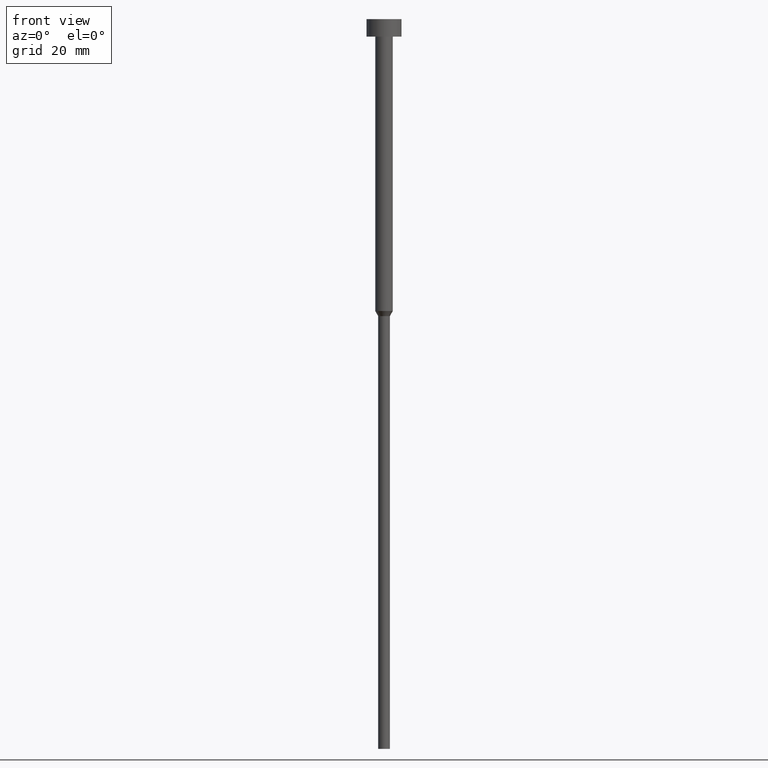
[diagram: clean part render]
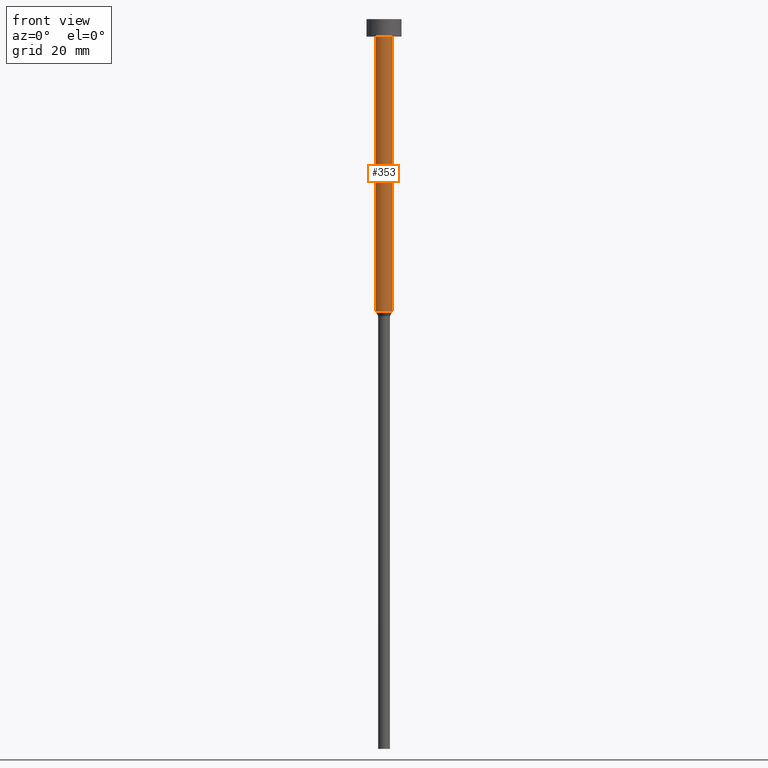
[diagram: same view with one face highlighted and labeled with its STEP entity id]
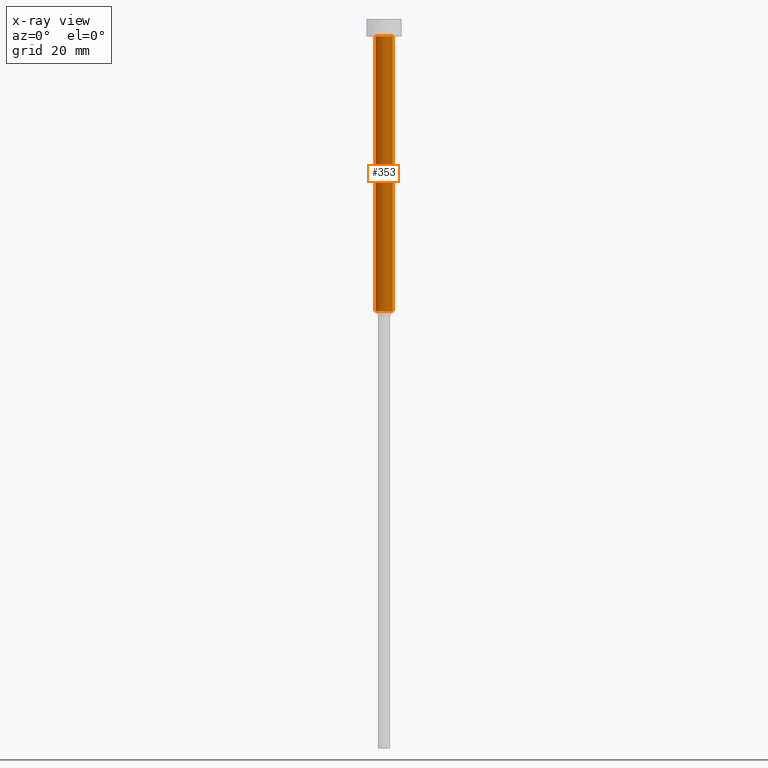
[diagram: x-ray of the same camera — body ghosted, the highlighted face saturated]
A machine part, front view. The second image highlights one B-rep face of the part: STEP entity #353.
The next image is the same camera in x-ray: the body ghosted, the highlighted face saturated — about 0% of this face is hidden behind the body in this view.
In plain terms, the highlighted cylindrical surface (edge-blend (fillet) strip) has radius 1.5 mm, axis along (-0, -0, 1).
Its self-contained STEP definition (entity closure, byte-faithful):
#28 = CIRCLE ( 'NONE', #250, 1.500000000000000000 ) ;
#42 = VERTEX_POINT ( 'NONE', #330 ) ;
#62 = CIRCLE ( 'NONE', #220, 1.500000000000000000 ) ;
#74 = ORIENTED_EDGE ( 'NONE', *, *, #154, .T. ) ;
#93 = VECTOR ( 'NONE', #225, 1000.000000000000000 ) ;
#109 = DIRECTION ( 'NONE',  ( 1.000000000000000000, 0.000000000000000000, 0.000000000000000000 ) ) ;
#113 = CARTESIAN_POINT ( 'NONE',  ( 0.000000000000000000, 0.000000000000000000, -3.000000000000000888 ) ) ;
#114 = VERTEX_POINT ( 'NONE', #276 ) ;
#116 = CARTESIAN_POINT ( 'NONE',  ( -1.500000000000000000, 1.836970198721029934E-16, 0.000000000000000000 ) ) ;
#122 = CYLINDRICAL_SURFACE ( 'NONE', #341, 1.500000000000000000 ) ;
#125 = ORIENTED_EDGE ( 'NONE', *, *, #273, .F. ) ;
#154 = EDGE_CURVE ( 'NONE', #188, #275, #345, .T. ) ;
#155 = CARTESIAN_POINT ( 'NONE',  ( 1.500000000000000000, 0.000000000000000000, -50.00000000000000000 ) ) ;
#171 = DIRECTION ( 'NONE',  ( -0.000000000000000000, -0.000000000000000000, 1.000000000000000000 ) ) ;
#181 = ORIENTED_EDGE ( 'NONE', *, *, #321, .F. ) ;
#187 = CARTESIAN_POINT ( 'NONE',  ( 1.500000000000000000, 0.000000000000000000, 0.000000000000000000 ) ) ;
#188 = VERTEX_POINT ( 'NONE', #155 ) ;
#190 = DIRECTION ( 'NONE',  ( 1.000000000000000000, 0.000000000000000000, 0.000000000000000000 ) ) ;
#199 = EDGE_CURVE ( 'NONE', #114, #188, #62, .T. ) ;
#214 = FACE_OUTER_BOUND ( 'NONE', #266, .T. ) ;
#220 = AXIS2_PLACEMENT_3D ( 'NONE', #237, #260, #190 ) ;
#223 = VECTOR ( 'NONE', #342, 1000.000000000000000 ) ;
#225 = DIRECTION ( 'NONE',  ( -0.000000000000000000, -0.000000000000000000, 1.000000000000000000 ) ) ;
#227 = LINE ( 'NONE', #116, #93 ) ;
#231 = DIRECTION ( 'NONE',  ( -0.000000000000000000, -0.000000000000000000, 1.000000000000000000 ) ) ;
#237 = CARTESIAN_POINT ( 'NONE',  ( 0.000000000000000000, 0.000000000000000000, -50.00000000000000000 ) ) ;
#250 = AXIS2_PLACEMENT_3D ( 'NONE', #113, #171, #109 ) ;
#251 = DIRECTION ( 'NONE',  ( 1.000000000000000000, 0.000000000000000000, 0.000000000000000000 ) ) ;
#260 = DIRECTION ( 'NONE',  ( -0.000000000000000000, -0.000000000000000000, 1.000000000000000000 ) ) ;
#266 = EDGE_LOOP ( 'NONE', ( #181, #290, #74, #125 ) ) ;
#273 = EDGE_CURVE ( 'NONE', #42, #275, #28, .T. ) ;
#275 = VERTEX_POINT ( 'NONE', #306 ) ;
#276 = CARTESIAN_POINT ( 'NONE',  ( -1.500000000000000000, 1.836970198721029934E-16, -50.00000000000000000 ) ) ;
#290 = ORIENTED_EDGE ( 'NONE', *, *, #199, .T. ) ;
#306 = CARTESIAN_POINT ( 'NONE',  ( 1.500000000000000000, 0.000000000000000000, -3.000000000000000888 ) ) ;
#321 = EDGE_CURVE ( 'NONE', #114, #42, #227, .T. ) ;
#330 = CARTESIAN_POINT ( 'NONE',  ( -1.500000000000000000, 1.836970198721029934E-16, -3.000000000000000888 ) ) ;
#332 = CARTESIAN_POINT ( 'NONE',  ( 0.000000000000000000, 0.000000000000000000, 0.000000000000000000 ) ) ;
#341 = AXIS2_PLACEMENT_3D ( 'NONE', #332, #231, #251 ) ;
#342 = DIRECTION ( 'NONE',  ( -0.000000000000000000, -0.000000000000000000, 1.000000000000000000 ) ) ;
#345 = LINE ( 'NONE', #187, #223 ) ;
#353 = ADVANCED_FACE ( 'NONE', ( #214 ), #122, .T. ) ;